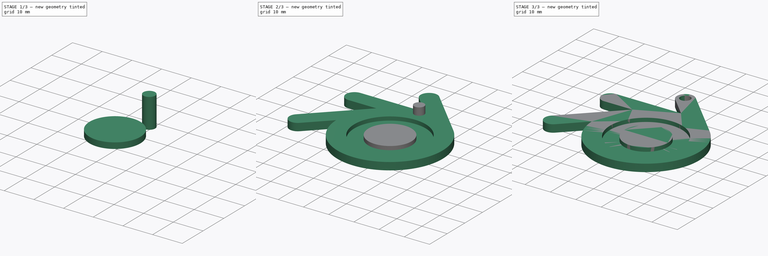
[diagram: build sequence overview — one tinted view per stage of 3, left to right]
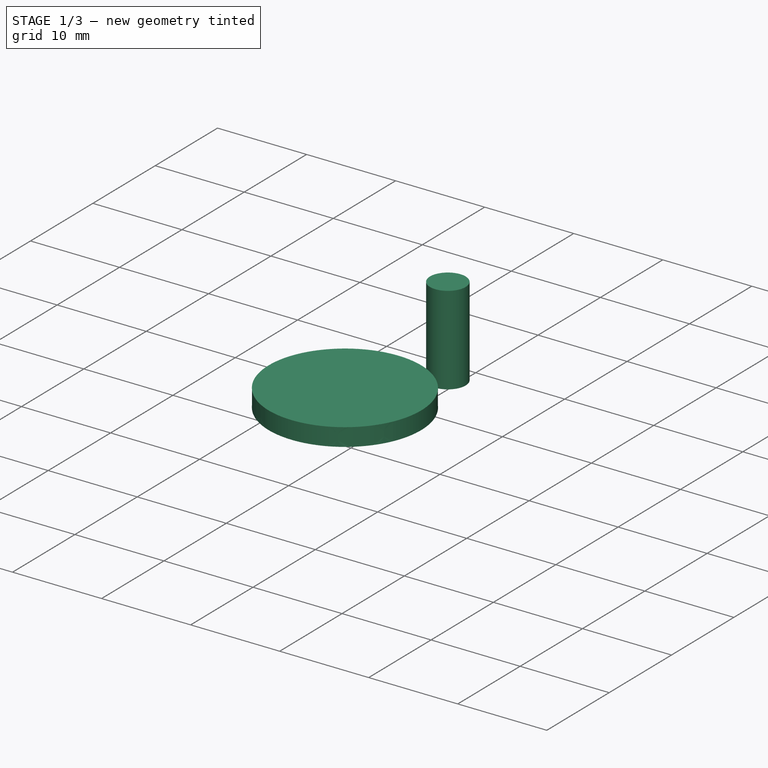
[diagram: stage 1 of 3 — iso view after this stage's code; geometry added in this stage tinted green]
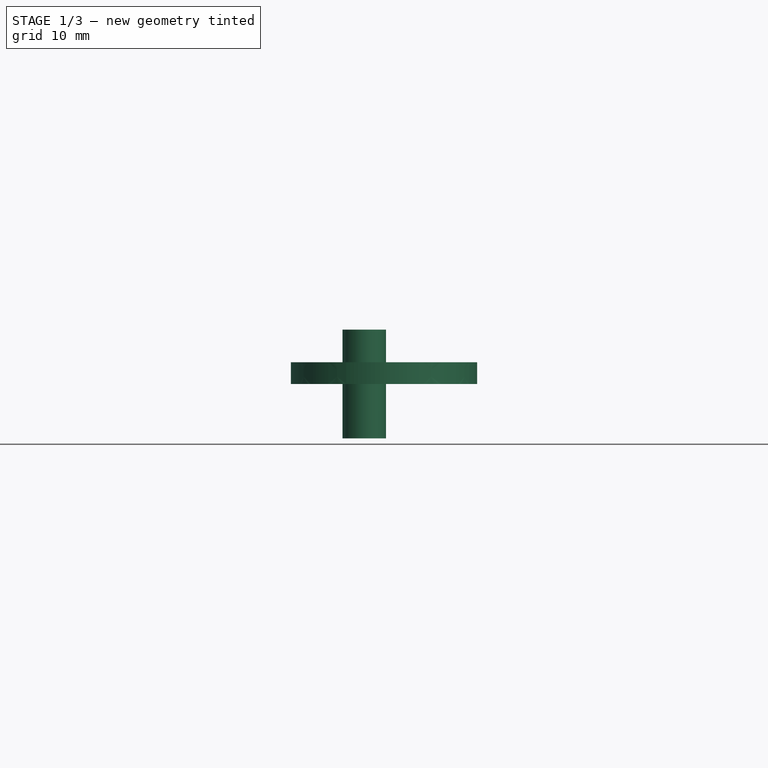
[diagram: stage 1 of 3 — front view after this stage's code; geometry added in this stage tinted green]
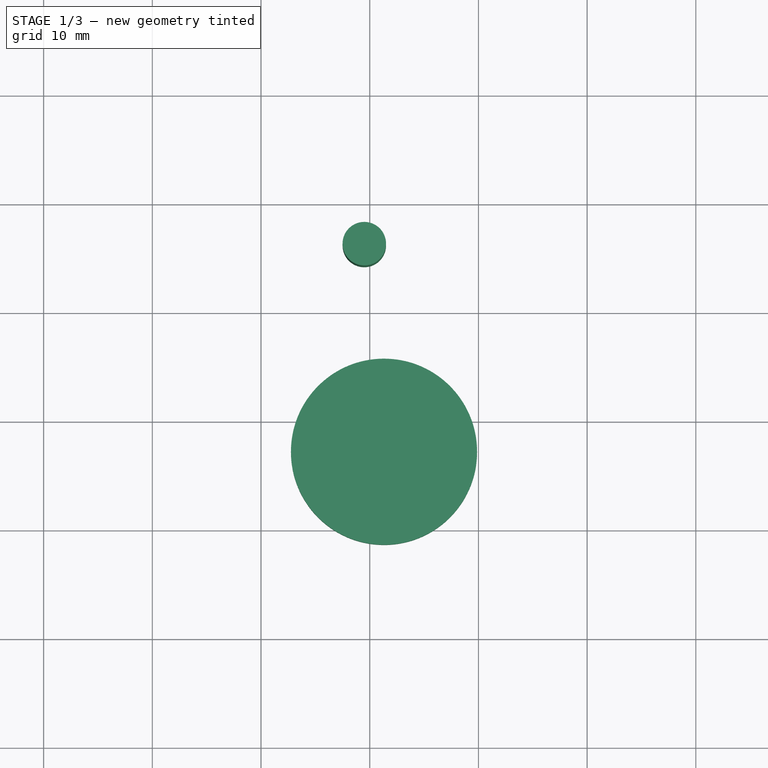
[diagram: stage 1 of 3 — top view after this stage's code; geometry added in this stage tinted green]
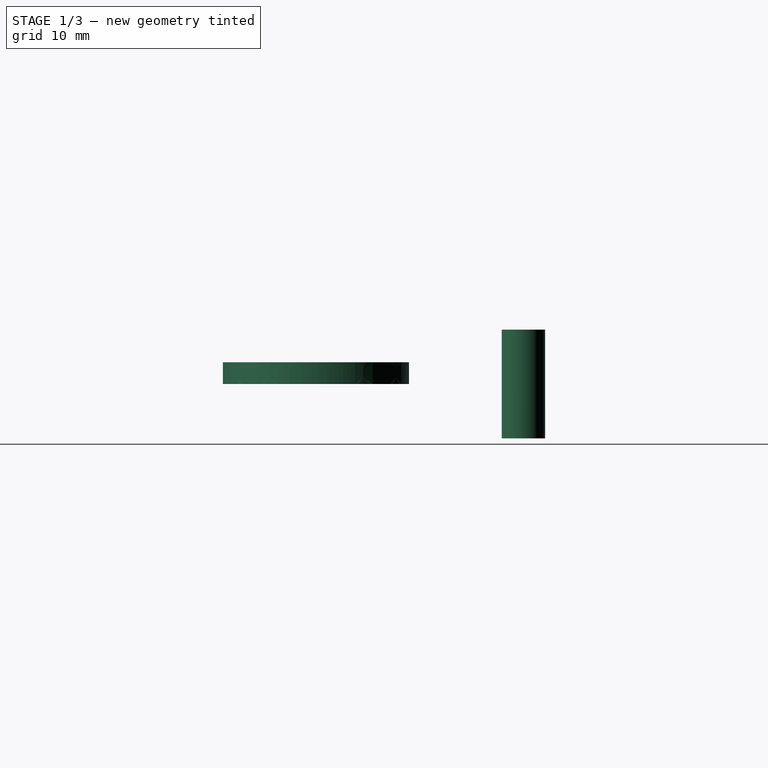
[diagram: stage 1 of 3 — right view after this stage's code; geometry added in this stage tinted green]
FCSTD DOCUMENT  (FreeCAD 0.14R3702 (Git))
Label: blender
License: CreativeCommons Attribution-ShareAlike
LicenseURL: http://creativecommons.org/licenses/by-sa/4.0/
objects: Part::Feature×5, Part::Extrusion×3, Part::Cut×2, Sketcher::SketchObject×1, App::DocumentObjectGroup×1, Part::MultiFuse×1, Part::Cylinder×1
note: 13 computed .brp shape members not serialized (recipe doc carries the construction recipe); baked Part::Feature solids carry a one-line shape summary decoded from their .brp

FEATURE [Part::Extrusion] Extrude005
  Base = -> path3055002
  Dir = (0,0,2)
  Placement = pos=(0,0,1) rot=(0,0,1;0rad)
  Solid = true
FEATURE [Part::Cylinder] Cylinder001  label="Cilindro"
  Angle = 360
  Height = 10
  Placement = pos=(-0.5,16.25,-4) rot=(0,0,1;0rad)
  Radius = 2
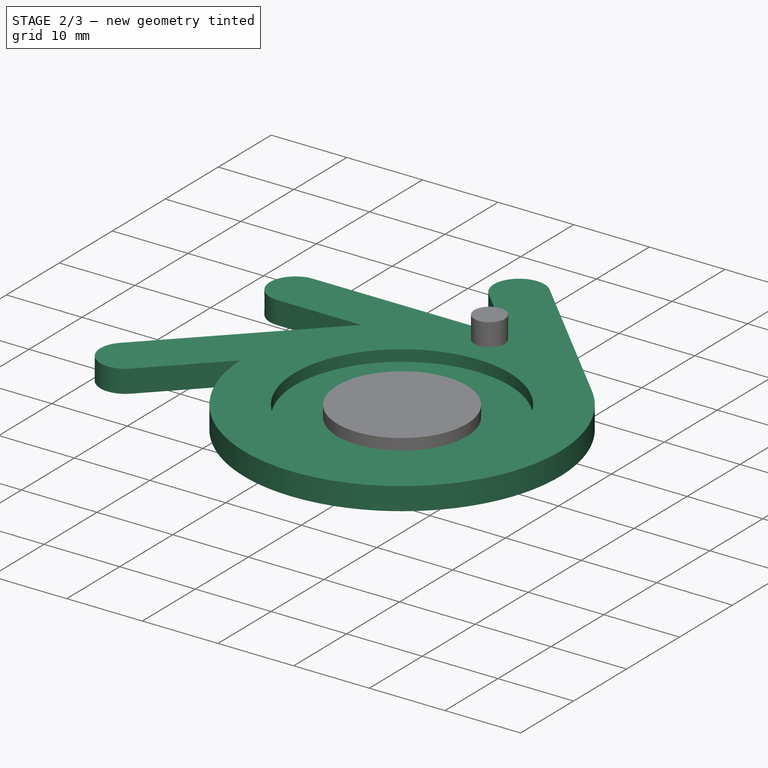
[diagram: stage 2 of 3 — iso view after this stage's code; geometry added in this stage tinted green]
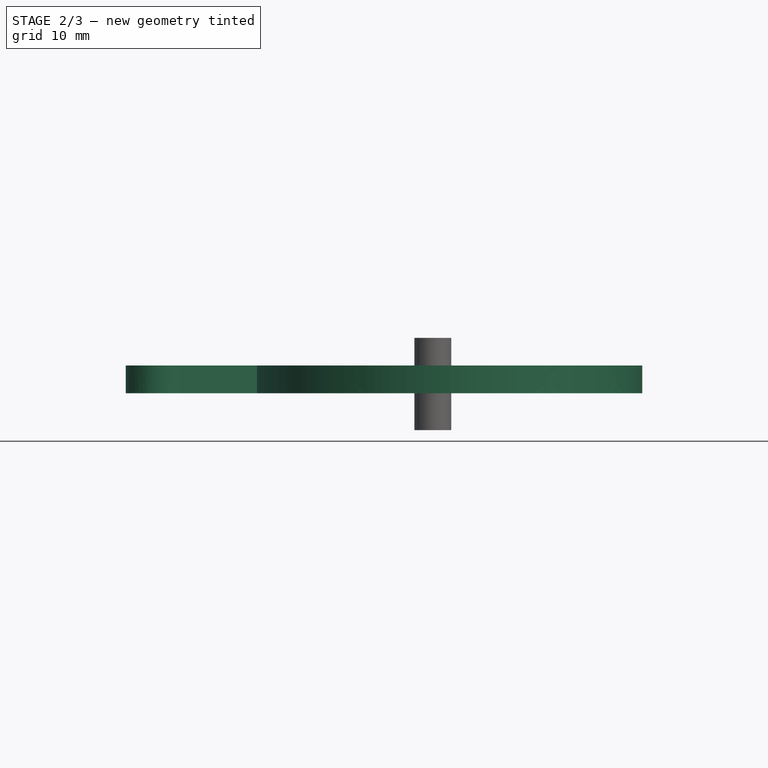
[diagram: stage 2 of 3 — front view after this stage's code; geometry added in this stage tinted green]
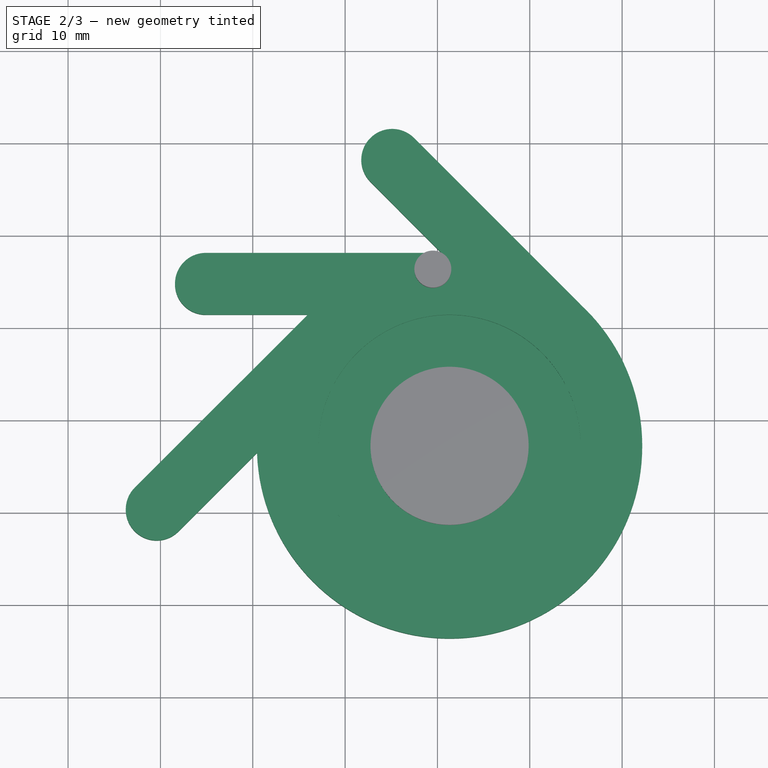
[diagram: stage 2 of 3 — top view after this stage's code; geometry added in this stage tinted green]
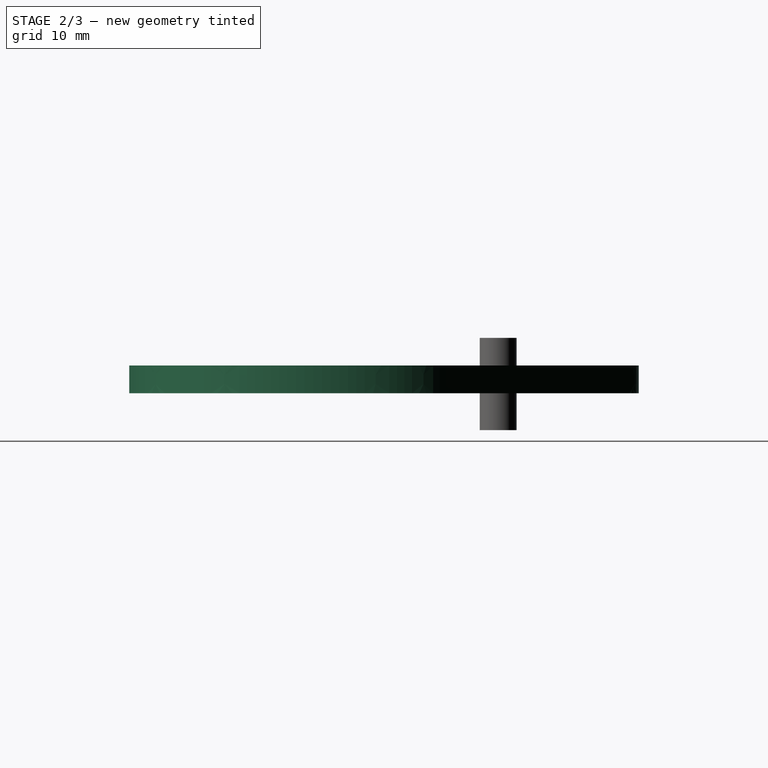
[diagram: stage 2 of 3 — right view after this stage's code; geometry added in this stage tinted green]
FEATURE [Sketcher::SketchObject] Sketch  label="hole-sketch"
  Placement = pos=(0,0,3.3) rot=(0,0,1;0rad)
  sketch-geometry (1):
    g0: Circle CenterX=0 CenterY=15.1 CenterZ=0 NormalX=0 NormalY=0 NormalZ=1 Radius=1.5
  constraints (3):
    c: Radius(g0) = 1.5
    c: PointOnObject(g0,g-2)
    c: DistanceY(g-1,g0) = 15.1
FEATURE [Part::Feature] Sweep  label="key-ring-model-1"
  Placement = pos=(-1.2,24.7546,1.6391) rot=(0.333333,0.881918,0.333333;1.69612rad)
  shape: bbox 3.31 x 27.02 x 26.33 mm, 4 faces (baked)
FEATURE [Part::Feature] Cut  label="key-model-1"
  Placement = pos=(-5.46976,31.0266,0) rot=(0,0,1;0.517888rad)
  shape: bbox 49.82 x 36.6 x 2.3 mm, 44 faces (baked)
FEATURE [App::DocumentObjectGroup] Group  label="Assembly"
  Group = -> [Sweep,Cut]
FEATURE [Part::Feature] path3055
  shape: bbox 56.11 x 55.19 x 2e-07 mm, 0 faces, 0 solids (baked)
FEATURE [Part::Feature] path3055001
  shape: bbox 28.39 x 28.39 x 2e-07 mm, 0 faces, 0 solids (baked)
FEATURE [Part::Feature] path3055002
  shape: bbox 17.12 x 17.12 x 2e-07 mm, 0 faces, 0 solids (baked)
FEATURE [Part::Extrusion] Extrude003
  Base = -> path3055
  Dir = (0,0,3)
  Solid = true
FEATURE [Part::Extrusion] Extrude004
  Base = -> path3055001
  Dir = (0,0,3)
  Placement = pos=(0,0,1.5) rot=(0,0,1;0rad)
  Solid = true
FEATURE [Part::Cut] Cut001
  Base = -> Extrude003
  Tool = -> Extrude004
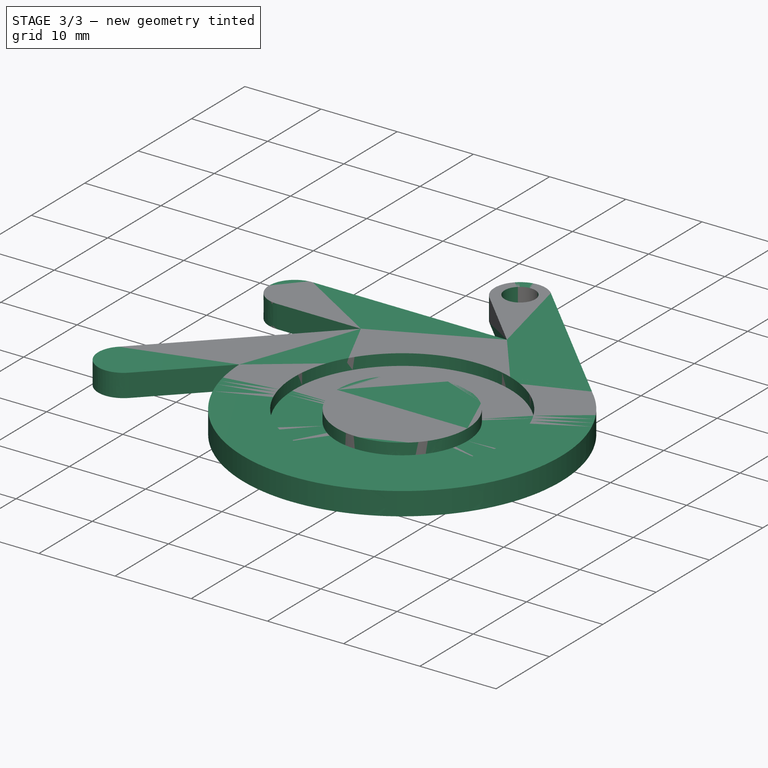
[diagram: stage 3 of 3 — iso view after this stage's code; geometry added in this stage tinted green]
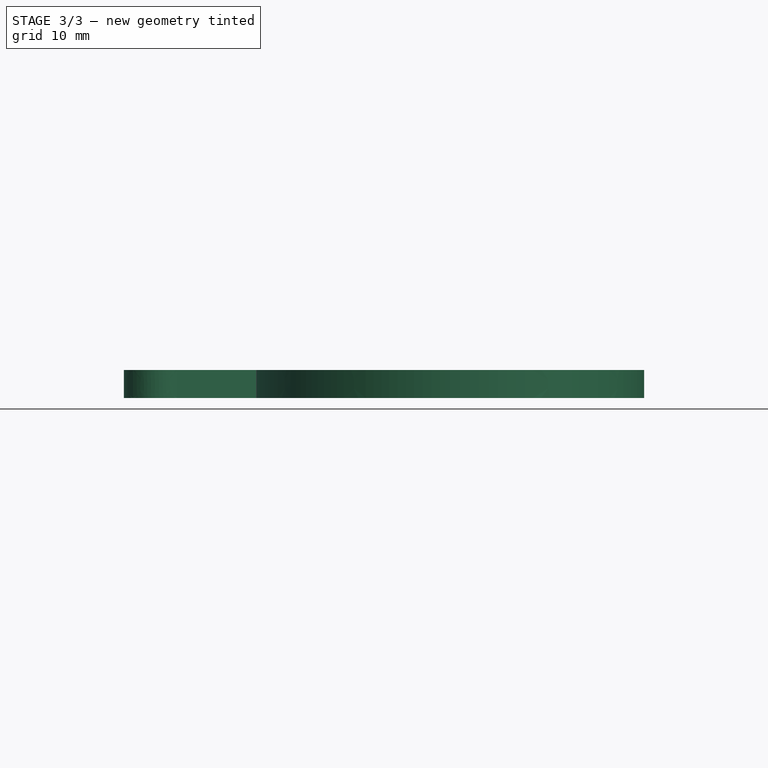
[diagram: stage 3 of 3 — front view after this stage's code; geometry added in this stage tinted green]
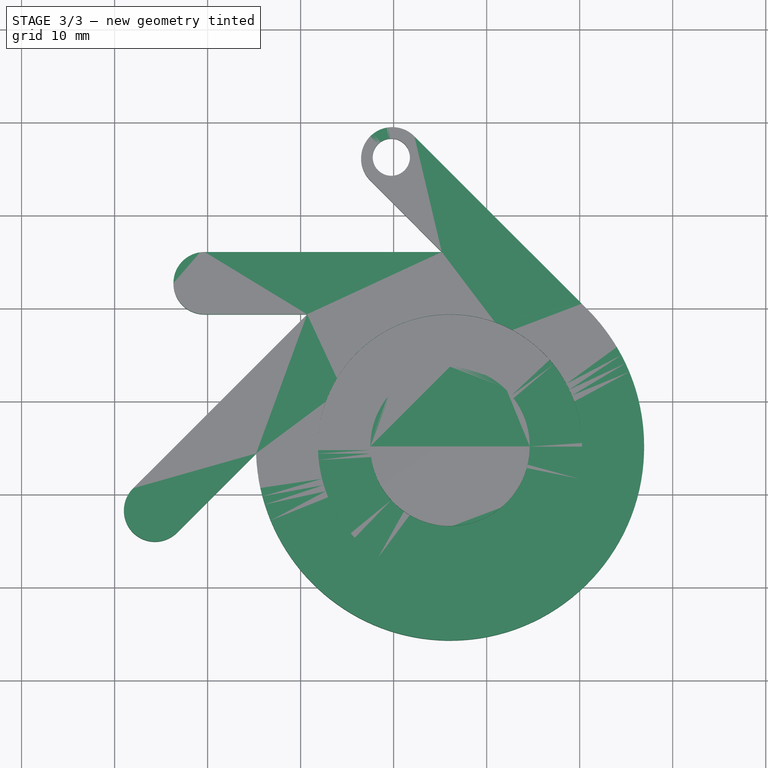
[diagram: stage 3 of 3 — top view after this stage's code; geometry added in this stage tinted green]
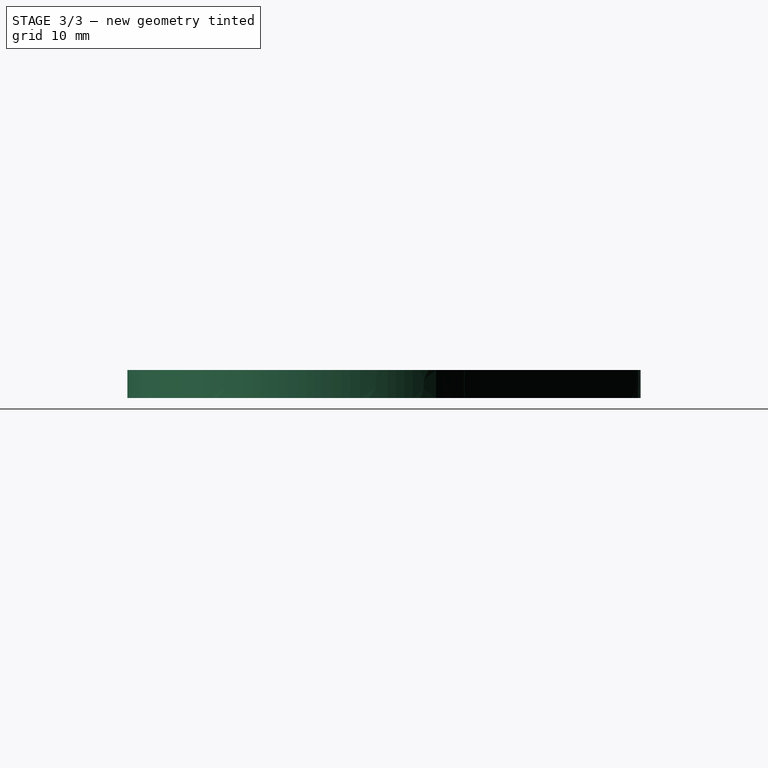
[diagram: stage 3 of 3 — right view after this stage's code; geometry added in this stage tinted green]
FEATURE [Part::MultiFuse] Fusion
  Placement = pos=(4.5,-12,0) rot=(0,0,1;0rad)
  Shapes = -> [Cut001,Extrude005]
FEATURE [Part::Cut] Cut002
  Base = -> Fusion
  Placement = pos=(0.25,0,0) rot=(0,0,1;0rad)
  Tool = -> Cylinder001
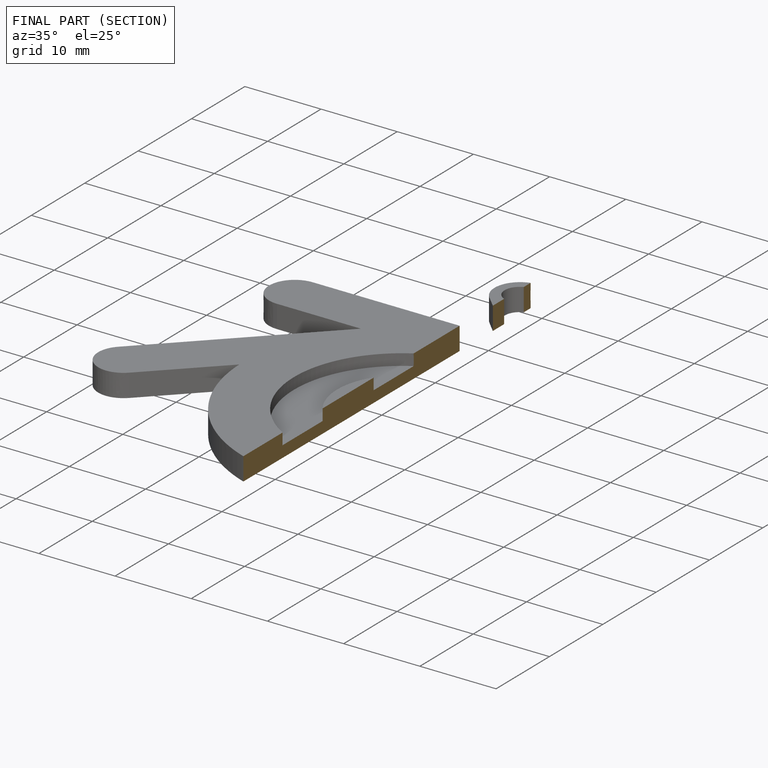
[diagram: finished part — half-section view (interior)]
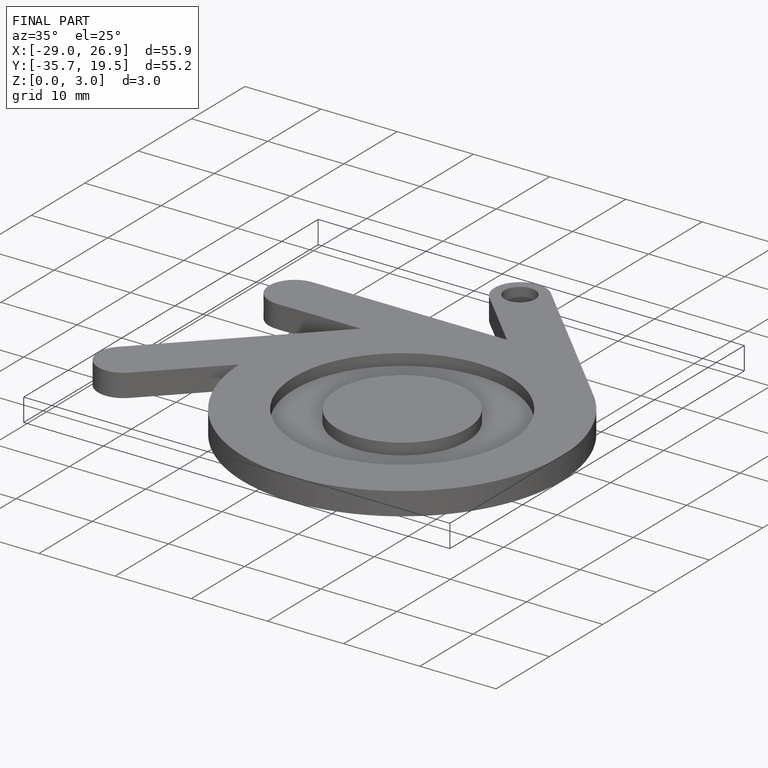
[diagram: finished part — iso view with bounding-box wireframe]
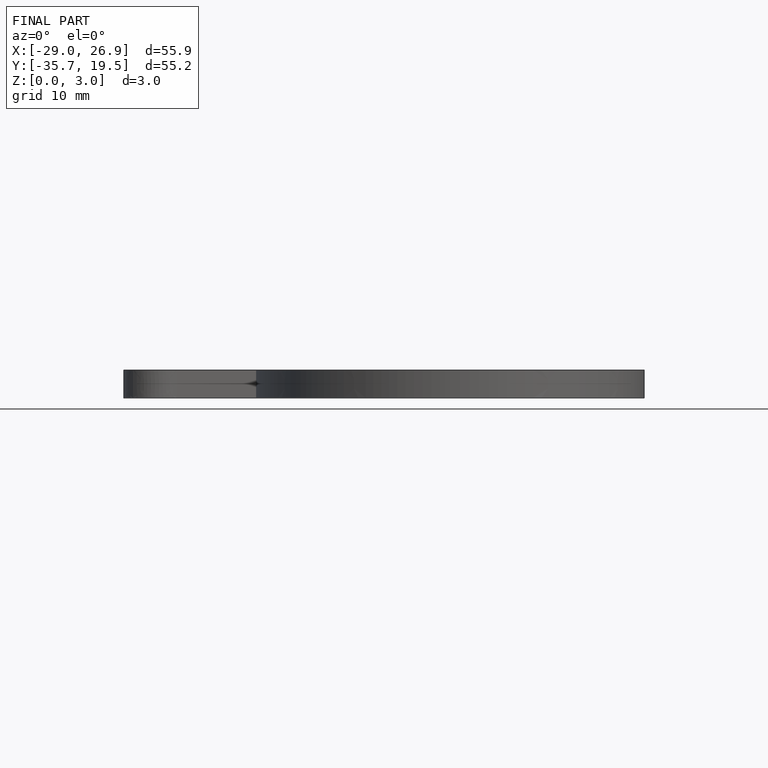
[diagram: finished part — front view with bounding-box wireframe]
